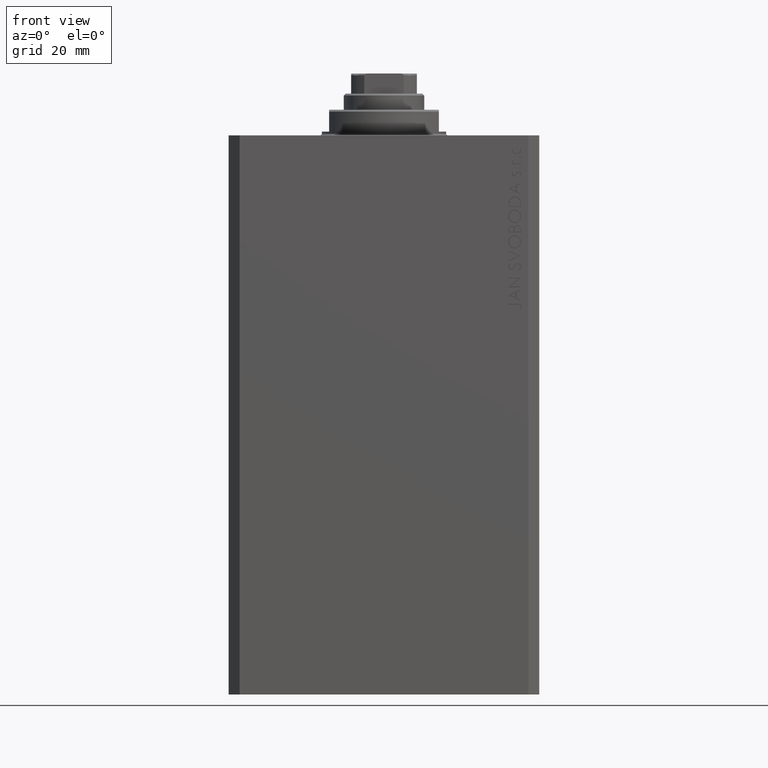
[diagram: clean part render]
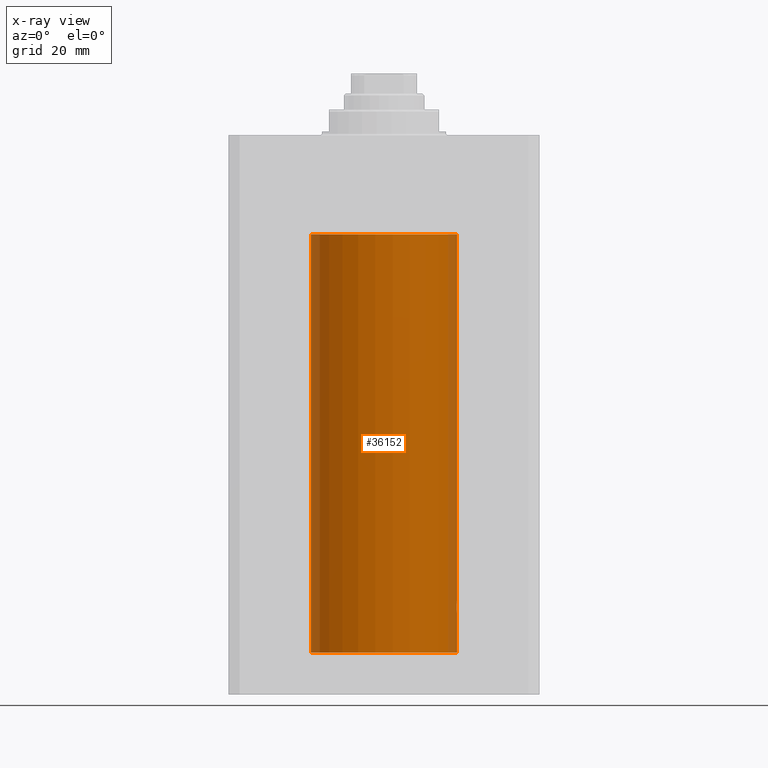
[diagram: x-ray — body ghosted, one internal face saturated and labeled with its STEP entity id]
A machine part, front view, then the same camera in x-ray: the body is ghosted and one INTERNAL B-rep face — a face not visible from any outside direction — is saturated and labeled: STEP entity #36152.
In plain terms, the highlighted cylindrical surface (partial cylindrical patch) has radius 20 mm, axis along (0, 0, 1).
Its self-contained STEP definition (entity closure, byte-faithful):
#350 = CARTESIAN_POINT ( 'NONE',  ( 19.90607912840593485, -1.936147476084614905, -128.4819853815528177 ) ) ;
#2081 = CARTESIAN_POINT ( 'NONE',  ( 19.96296989966237589, -1.230425635331419354, -130.5981187666770609 ) ) ;
#2521 = CARTESIAN_POINT ( 'NONE',  ( 19.99450726301181192, -0.5268413099739839289, -130.9468459871092989 ) ) ;
#2672 = AXIS2_PLACEMENT_3D ( 'NONE', #8443, #22350, #35582 ) ;
#3059 = CARTESIAN_POINT ( 'NONE',  ( 19.90983652367462042, -1.897617924364793929, -128.3548402033379432 ) ) ;
#3355 = B_SPLINE_CURVE_WITH_KNOTS ( 'NONE', 3,
 ( #12372, #29439, #9457, #29650, #36831, #39733, #30101, #29870, #43324, #2081, #43107, #2521, #43542, #12819 ),
 .UNSPECIFIED., .F., .F.,
 ( 4, 2, 2, 2, 2, 2, 4 ),
 ( 0.009386006266958986724, 0.009776776943204312439, 0.01016754761944963815, 0.01055831829569496387, 0.01094908897194028959, 0.01173063032443094102, 0.01251217167692159245 ),
 .UNSPECIFIED. ) ;
#3434 = ORIENTED_EDGE ( 'NONE', *, *, #42638, .T. ) ;
#3864 = CARTESIAN_POINT ( 'NONE',  ( 20.00000000000000000, -1.553109350199128042E-23, -127.0000000000000000 ) ) ;
#4071 = ORIENTED_EDGE ( 'NONE', *, *, #19377, .T. ) ;
#7943 = VECTOR ( 'NONE', #10979, 1000.000000000000000 ) ;
#8443 = CARTESIAN_POINT ( 'NONE',  ( 0.000000000000000000, 0.000000000000000000, -27.10000000000000142 ) ) ;
#8728 = VERTEX_POINT ( 'NONE', #15395 ) ;
#9457 = CARTESIAN_POINT ( 'NONE',  ( 19.90106527362735278, -1.987020983172496980, -129.2621458537986143 ) ) ;
#9903 = ORIENTED_EDGE ( 'NONE', *, *, #31971, .F. ) ;
#10979 = DIRECTION ( 'NONE',  ( -0.000000000000000000, -0.000000000000000000, 1.000000000000000000 ) ) ;
#12372 = CARTESIAN_POINT ( 'NONE',  ( 19.89974874213243439, -1.999999999999655609, -129.0000000000000000 ) ) ;
#12819 = CARTESIAN_POINT ( 'NONE',  ( 20.00000000000000000, 0.000000000000000000, -131.0000000000000000 ) ) ;
#13133 = CARTESIAN_POINT ( 'NONE',  ( 19.93679035661676835, -1.590502522866568347, -127.7804150277140565 ) ) ;
#13303 = CARTESIAN_POINT ( 'NONE',  ( -20.00000000000000000, 2.449293598294706119E-15, -141.5999999999999943 ) ) ;
#13348 = CARTESIAN_POINT ( 'NONE',  ( 20.00000000000000355, -0.2612062508298595431, -127.0000000000000568 ) ) ;
#13357 = ORIENTED_EDGE ( 'NONE', *, *, #36015, .F. ) ;
#13928 = CARTESIAN_POINT ( 'NONE',  ( 20.00000000000000000, 0.000000000000000000, -131.0000000000000000 ) ) ;
#14025 = CARTESIAN_POINT ( 'NONE',  ( 19.89974874213243794, -1.999999999999656053, -128.8677987384940593 ) ) ;
#14110 = CARTESIAN_POINT ( 'NONE',  ( 0.000000000000000000, 0.000000000000000000, -141.5999999999999943 ) ) ;
#14748 = DIRECTION ( 'NONE',  ( -0.000000000000000000, -0.000000000000000000, 1.000000000000000000 ) ) ;
#14804 = CARTESIAN_POINT ( 'NONE',  ( -20.00000000000000000, 2.449293598294706119E-15, -141.5999999999999943 ) ) ;
#15395 = CARTESIAN_POINT ( 'NONE',  ( 20.00000000000000000, 0.000000000000000000, -27.10000000000000142 ) ) ;
#15944 = EDGE_CURVE ( 'NONE', #28144, #8728, #16279, .T. ) ;
#16279 = CIRCLE ( 'NONE', #2672, 20.00000000000000000 ) ;
#16519 = CARTESIAN_POINT ( 'NONE',  ( 19.90106531167247539, -1.987021080928413008, -128.7377912701302876 ) ) ;
#16901 = ORIENTED_EDGE ( 'NONE', *, *, #17766, .F. ) ;
#16945 = CARTESIAN_POINT ( 'NONE',  ( 19.94343050116686555, -1.506032346525467247, -127.6775485712697531 ) ) ;
#17369 = CARTESIAN_POINT ( 'NONE',  ( 0.000000000000000000, 0.000000000000000000, -141.5999999999999943 ) ) ;
#17399 = CARTESIAN_POINT ( 'NONE',  ( 19.97612863609106881, -1.006156579624595482, -127.2519787850422688 ) ) ;
#17766 = EDGE_CURVE ( 'NONE', #34329, #28272, #31386, .T. ) ;
#18974 = CARTESIAN_POINT ( 'NONE',  ( -20.00000000000000000, 2.449293598294706119E-15, -27.10000000000000142 ) ) ;
#19210 = VECTOR ( 'NONE', #14748, 1000.000000000000000 ) ;
#19377 = EDGE_CURVE ( 'NONE', #36892, #35555, #3355, .T. ) ;
#20532 = CARTESIAN_POINT ( 'NONE',  ( 19.92467362751852988, -1.735709893904984202, -127.9978039393057969 ) ) ;
#20747 = EDGE_LOOP ( 'NONE', ( #16901, #25705, #30123, #13357, #3434, #4071, #9903 ) ) ;
#20843 = DIRECTION ( 'NONE',  ( 0.000000000000000000, 0.000000000000000000, 1.000000000000000000 ) ) ;
#21047 = LINE ( 'NONE', #38299, #19210 ) ;
#21099 = LINE ( 'NONE', #14804, #7943 ) ;
#21455 = AXIS2_PLACEMENT_3D ( 'NONE', #17369, #30822, #37764 ) ;
#22350 = DIRECTION ( 'NONE',  ( 0.000000000000000000, 0.000000000000000000, 1.000000000000000000 ) ) ;
#23887 = CARTESIAN_POINT ( 'NONE',  ( 19.89974874213243439, -1.999999999999655609, -129.0000000000000000 ) ) ;
#25705 = ORIENTED_EDGE ( 'NONE', *, *, #44251, .T. ) ;
#26337 = DIRECTION ( 'NONE',  ( -0.000000000000000000, -0.000000000000000000, 1.000000000000000000 ) ) ;
#27042 = CARTESIAN_POINT ( 'NONE',  ( 19.99457156948952630, -0.5245703965536842039, -127.0525002876190541 ) ) ;
#27270 = CARTESIAN_POINT ( 'NONE',  ( 19.91915476385079842, -1.797169352086253724, -128.1126628205572047 ) ) ;
#28144 = VERTEX_POINT ( 'NONE', #18974 ) ;
#28272 = VERTEX_POINT ( 'NONE', #37990 ) ;
#28436 = VERTEX_POINT ( 'NONE', #3864 ) ;
#29318 = VECTOR ( 'NONE', #26337, 1000.000000000000000 ) ;
#29439 = CARTESIAN_POINT ( 'NONE',  ( 19.89974874213243083, -1.999999999999655609, -129.1320736180661584 ) ) ;
#29650 = CARTESIAN_POINT ( 'NONE',  ( 19.90607187811044199, -1.936221525612424221, -129.5177055533667101 ) ) ;
#29870 = CARTESIAN_POINT ( 'NONE',  ( 19.93674030556023880, -1.591123942389848001, -130.2187588700502943 ) ) ;
#30101 = CARTESIAN_POINT ( 'NONE',  ( 19.92464121718640868, -1.736076547215880783, -130.0015422135783751 ) ) ;
#30123 = ORIENTED_EDGE ( 'NONE', *, *, #15944, .T. ) ;
#30678 = AXIS2_PLACEMENT_3D ( 'NONE', #14110, #20843, #38110 ) ;
#30822 = DIRECTION ( 'NONE',  ( -0.000000000000000000, -0.000000000000000000, 1.000000000000000000 ) ) ;
#31386 = CIRCLE ( 'NONE', #30678, 20.00000000000000000 ) ;
#31971 = EDGE_CURVE ( 'NONE', #28272, #35555, #21047, .T. ) ;
#33523 = CYLINDRICAL_SURFACE ( 'NONE', #21455, 20.00000000000000000 ) ;
#33783 = CARTESIAN_POINT ( 'NONE',  ( 20.00000000000000000, -1.553109350199128042E-23, -127.0000000000000000 ) ) ;
#33965 = FACE_OUTER_BOUND ( 'NONE', #20747, .T. ) ;
#34329 = VERTEX_POINT ( 'NONE', #13303 ) ;
#34433 = CARTESIAN_POINT ( 'NONE',  ( 19.96304361591165488, -1.229269670911796952, -127.4009562492831549 ) ) ;
#35555 = VERTEX_POINT ( 'NONE', #13928 ) ;
#35582 = DIRECTION ( 'NONE',  ( 1.000000000000000000, 0.000000000000000000, 0.000000000000000000 ) ) ;
#36015 = EDGE_CURVE ( 'NONE', #28436, #8728, #39574, .T. ) ;
#36152 = ADVANCED_FACE ( 'NONE', ( #33965 ), #33523, .F. ) ;
#36831 = CARTESIAN_POINT ( 'NONE',  ( 19.90981966846454654, -1.897793276286219299, -129.6446336132284216 ) ) ;
#36892 = VERTEX_POINT ( 'NONE', #41237 ) ;
#37764 = DIRECTION ( 'NONE',  ( 1.000000000000000000, 0.000000000000000000, 0.000000000000000000 ) ) ;
#37990 = CARTESIAN_POINT ( 'NONE',  ( 20.00000000000000000, 0.000000000000000000, -141.5999999999999943 ) ) ;
#38110 = DIRECTION ( 'NONE',  ( 1.000000000000000000, 0.000000000000000000, 0.000000000000000000 ) ) ;
#38299 = CARTESIAN_POINT ( 'NONE',  ( 20.00000000000000000, 0.000000000000000000, -141.5999999999999943 ) ) ;
#39348 = CARTESIAN_POINT ( 'NONE',  ( 20.00000000000000000, 0.000000000000000000, -141.5999999999999943 ) ) ;
#39574 = LINE ( 'NONE', #39348, #29318 ) ;
#39576 = B_SPLINE_CURVE_WITH_KNOTS ( 'NONE', 3,
 ( #33783, #13348, #27042, #17399, #34433, #16945, #13133, #20532, #27270, #3059, #350, #16519, #14025, #23887 ),
 .UNSPECIFIED., .F., .F.,
 ( 4, 2, 2, 2, 2, 2, 4 ),
 ( 0.006256819553330524031, 0.007039116231737640138, 0.007821412910144756245, 0.008212561249348312997, 0.008603709588551871484, 0.008994857927755429972, 0.009386006266958986724 ),
 .UNSPECIFIED. ) ;
#39733 = CARTESIAN_POINT ( 'NONE',  ( 19.91912874598169125, -1.797456133345314511, -129.8867487037038302 ) ) ;
#41237 = CARTESIAN_POINT ( 'NONE',  ( 19.89974874213243439, -1.999999999999655609, -129.0000000000000000 ) ) ;
#42638 = EDGE_CURVE ( 'NONE', #28436, #36892, #39576, .T. ) ;
#43107 = CARTESIAN_POINT ( 'NONE',  ( 19.97604812261521090, -1.007662572237612242, -130.7471082404733238 ) ) ;
#43324 = CARTESIAN_POINT ( 'NONE',  ( 19.94337316053471554, -1.506783194222110600, -130.3215850766146104 ) ) ;
#43542 = CARTESIAN_POINT ( 'NONE',  ( 20.00000000000000000, -0.2642773949967766045, -131.0000000000000000 ) ) ;
#44251 = EDGE_CURVE ( 'NONE', #34329, #28144, #21099, .T. ) ;